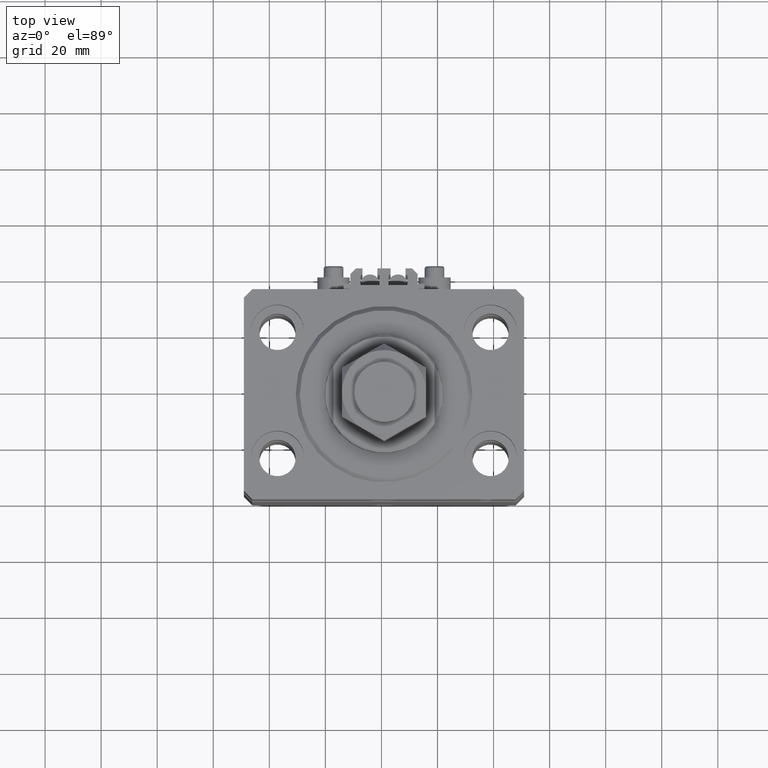
[diagram: clean part render]
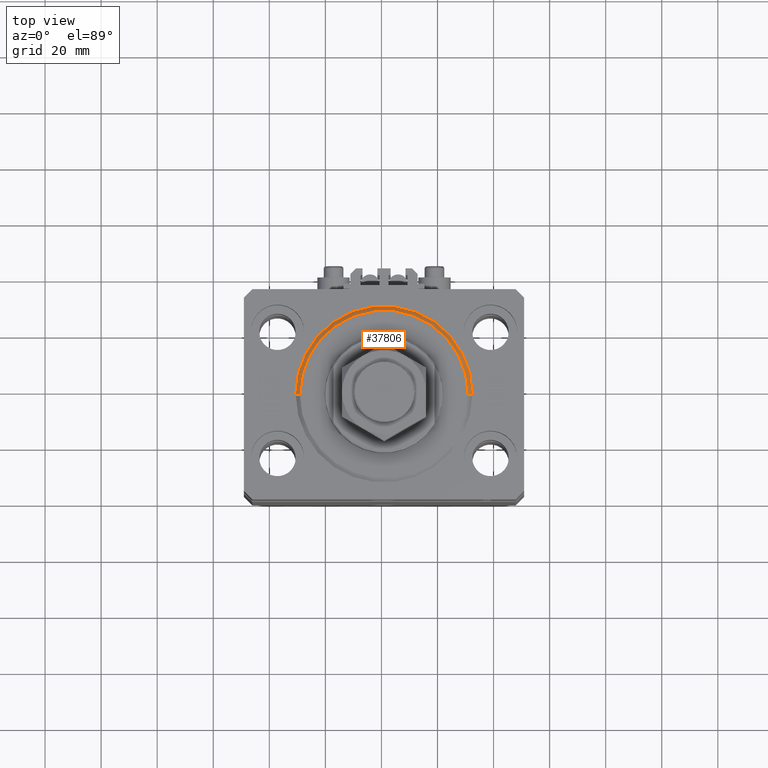
[diagram: same view with one face highlighted and labeled with its STEP entity id]
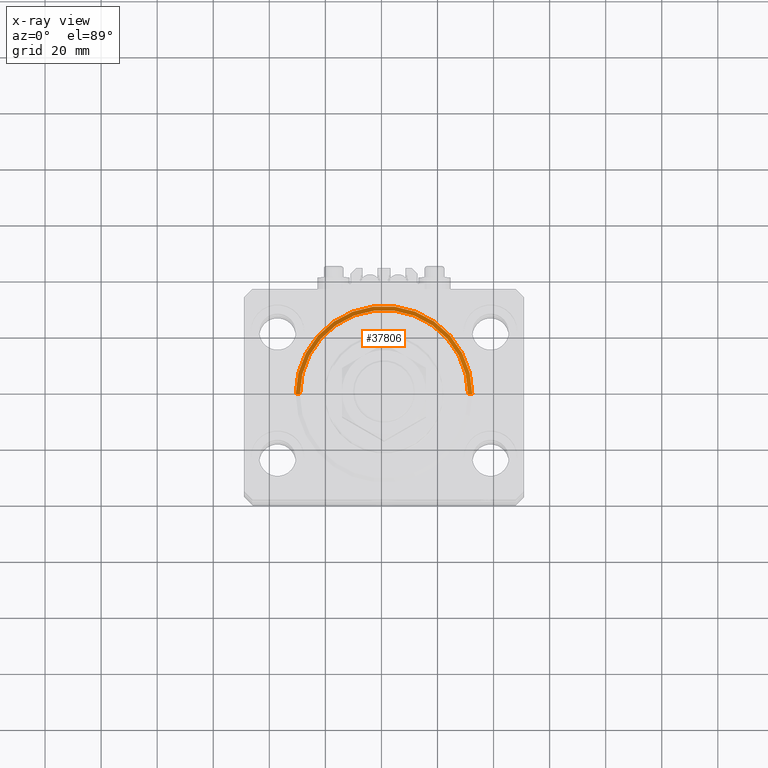
[diagram: x-ray of the same camera — body ghosted, the highlighted face saturated]
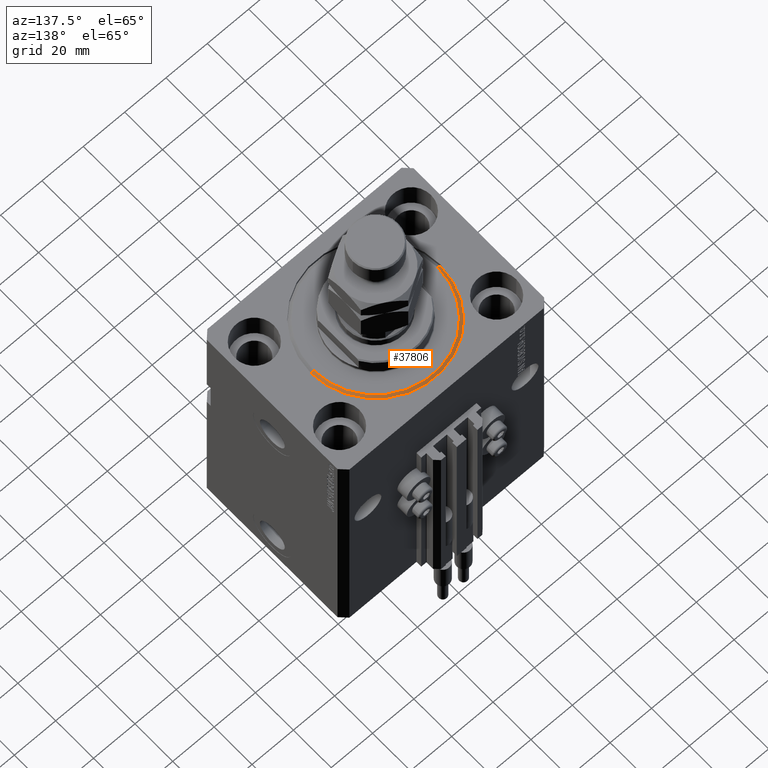
[diagram: same view with one face highlighted and labeled with its STEP entity id]
A machine part, top view. The second image highlights one B-rep face of the part: STEP entity #37806.
The next image is the same camera in x-ray: the body ghosted, the highlighted face saturated — about 0% of this face is hidden behind the body in this view.
A second angle (auxiliary view) of the same face is appended — the face is thin or edge-on in the first view.
In plain terms, the highlighted conical surface has half-angle 45 deg.
Its self-contained STEP definition (entity closure, byte-faithful):
#983 = EDGE_CURVE ( 'NONE', #13368, #47720, #15526, .T. ) ;
#2423 = ORIENTED_EDGE ( 'NONE', *, *, #35037, .F. ) ;
#4501 = DIRECTION ( 'NONE',  ( 1.000000000000000000, 0.000000000000000000, 0.000000000000000000 ) ) ;
#6845 = CARTESIAN_POINT ( 'NONE',  ( 0.000000000000000000, 0.000000000000000000, 1.499999999999980460 ) ) ;
#7733 = EDGE_LOOP ( 'NONE', ( #8730, #21680, #2423, #14694 ) ) ;
#8203 = CIRCLE ( 'NONE', #15576, 30.00000000000002132 ) ;
#8359 = CIRCLE ( 'NONE', #32887, 31.50000000000000000 ) ;
#8730 = ORIENTED_EDGE ( 'NONE', *, *, #31469, .F. ) ;
#10156 = VERTEX_POINT ( 'NONE', #40754 ) ;
#13368 = VERTEX_POINT ( 'NONE', #38709 ) ;
#13925 = DIRECTION ( 'NONE',  ( 0.7071067811865474617, 0.000000000000000000, 0.7071067811865474617 ) ) ;
#14139 = VECTOR ( 'NONE', #27798, 1000.000000000000114 ) ;
#14312 = CONICAL_SURFACE ( 'NONE', #23308, 31.50000000000000000, 0.7853981633974482790 ) ;
#14694 = ORIENTED_EDGE ( 'NONE', *, *, #22565, .F. ) ;
#14794 = DIRECTION ( 'NONE',  ( 1.000000000000000000, 0.000000000000000000, 0.000000000000000000 ) ) ;
#15526 = LINE ( 'NONE', #23209, #14139 ) ;
#15576 = AXIS2_PLACEMENT_3D ( 'NONE', #44713, #23994, #4501 ) ;
#16920 = CARTESIAN_POINT ( 'NONE',  ( -31.50000000000000000, 0.000000000000000000, 1.499999999999980460 ) ) ;
#17105 = CARTESIAN_POINT ( 'NONE',  ( 0.000000000000000000, 0.000000000000000000, 1.499999999999980460 ) ) ;
#20770 = VERTEX_POINT ( 'NONE', #27126 ) ;
#21680 = ORIENTED_EDGE ( 'NONE', *, *, #983, .T. ) ;
#22565 = EDGE_CURVE ( 'NONE', #20770, #10156, #40563, .T. ) ;
#23209 = CARTESIAN_POINT ( 'NONE',  ( -31.50000000000000000, 3.857637417314162689E-15, 1.499999999999980460 ) ) ;
#23308 = AXIS2_PLACEMENT_3D ( 'NONE', #6845, #33993, #14794 ) ;
#23994 = DIRECTION ( 'NONE',  ( -0.000000000000000000, -0.000000000000000000, -1.000000000000000000 ) ) ;
#24701 = CARTESIAN_POINT ( 'NONE',  ( 31.50000000000000000, 0.000000000000000000, 1.499999999999980460 ) ) ;
#27126 = CARTESIAN_POINT ( 'NONE',  ( 30.00000000000002132, 0.000000000000000000, 0.000000000000000000 ) ) ;
#27798 = DIRECTION ( 'NONE',  ( -0.7071067811865474617, 8.659560562354932858E-17, 0.7071067811865474617 ) ) ;
#31469 = EDGE_CURVE ( 'NONE', #13368, #20770, #8203, .T. ) ;
#32887 = AXIS2_PLACEMENT_3D ( 'NONE', #17105, #48111, #44513 ) ;
#33993 = DIRECTION ( 'NONE',  ( -0.000000000000000000, -0.000000000000000000, 1.000000000000000000 ) ) ;
#34974 = VECTOR ( 'NONE', #13925, 1000.000000000000114 ) ;
#35037 = EDGE_CURVE ( 'NONE', #10156, #47720, #8359, .T. ) ;
#37806 = ADVANCED_FACE ( 'NONE', ( #45540 ), #14312, .T. ) ;
#38709 = CARTESIAN_POINT ( 'NONE',  ( -30.00000000000002132, 3.765788907378112117E-15, 0.000000000000000000 ) ) ;
#40563 = LINE ( 'NONE', #24701, #34974 ) ;
#40754 = CARTESIAN_POINT ( 'NONE',  ( 31.50000000000000000, 3.857637417314162689E-15, 1.499999999999980460 ) ) ;
#44513 = DIRECTION ( 'NONE',  ( 1.000000000000000000, 0.000000000000000000, 0.000000000000000000 ) ) ;
#44713 = CARTESIAN_POINT ( 'NONE',  ( 0.000000000000000000, 0.000000000000000000, 0.000000000000000000 ) ) ;
#45540 = FACE_OUTER_BOUND ( 'NONE', #7733, .T. ) ;
#47720 = VERTEX_POINT ( 'NONE', #16920 ) ;
#48111 = DIRECTION ( 'NONE',  ( -0.000000000000000000, -0.000000000000000000, 1.000000000000000000 ) ) ;